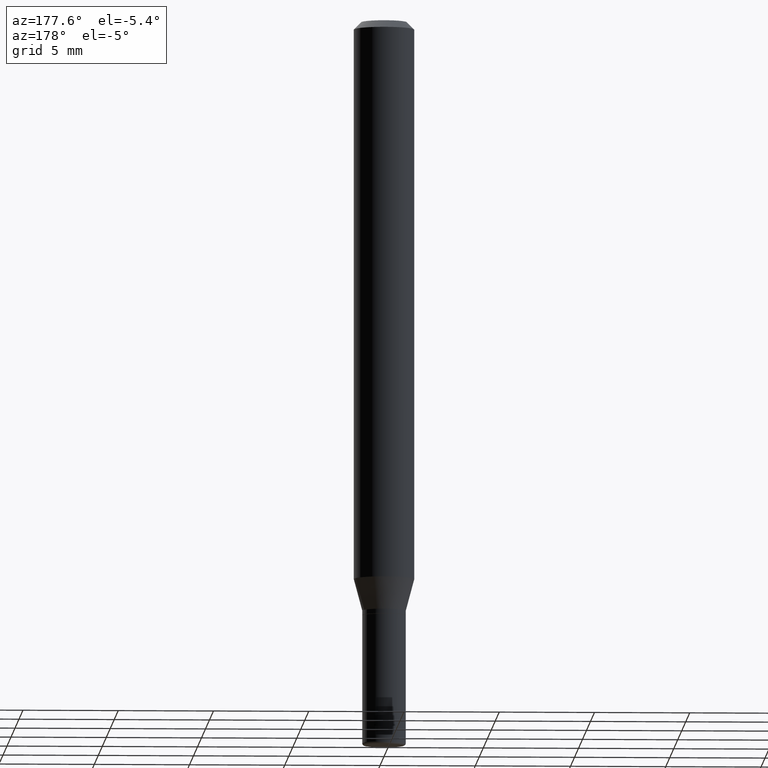
[diagram: clean part render]
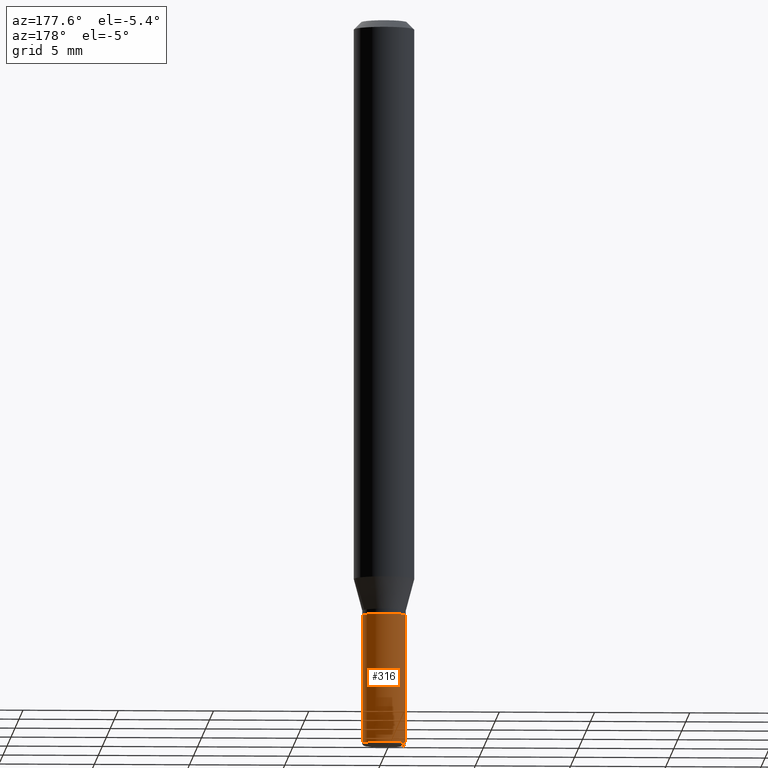
[diagram: same view with one face highlighted and labeled with its STEP entity id]
A machine part, auxiliary view. The second image highlights one B-rep face of the part: STEP entity #316.
In plain terms, the highlighted cylindrical surface (edge-blend (fillet) strip) has radius 1.143 mm, axis along (-0, 0, 1).
Its self-contained STEP definition (entity closure, byte-faithful):
#9 = DIRECTION ( 'NONE',  ( -2.445468806185136597E-29, 3.491481338843145583E-15, 1.000000000000000000 ) ) ;
#14 = CARTESIAN_POINT ( 'NONE',  ( 3.655975865246779683E-29, -5.219764601570503930E-15, -1.495000000000000329 ) ) ;
#26 = LINE ( 'NONE', #470, #53 ) ;
#30 = ORIENTED_EDGE ( 'NONE', *, *, #360, .T. ) ;
#43 = DIRECTION ( 'NONE',  ( 1.000000000000000000, -6.982962677686269077E-15, 0.000000000000000000 ) ) ;
#53 = VECTOR ( 'NONE', #344, 39.37007874015748143 ) ;
#73 = EDGE_CURVE ( 'NONE', #172, #255, #199, .T. ) ;
#79 = DIRECTION ( 'NONE',  ( -2.445468806185136597E-29, 3.491481338843145583E-15, 1.000000000000000000 ) ) ;
#85 = CARTESIAN_POINT ( 'NONE',  ( 3.007926631607718216E-29, -4.294522046777069173E-15, -1.230000000000000204 ) ) ;
#91 = VECTOR ( 'NONE', #107, 39.37007874015748143 ) ;
#107 = DIRECTION ( 'NONE',  ( -2.445468806185136877E-29, 3.491481338843145188E-15, 1.000000000000000000 ) ) ;
#137 = CARTESIAN_POINT ( 'NONE',  ( -0.04499999999999994976, 3.197442310920447267E-16, -2.213520790614704757E-30 ) ) ;
#143 = CARTESIAN_POINT ( 'NONE',  ( -0.04499999999999990119, -4.437399093081741973E-15, -1.495000000000000329 ) ) ;
#148 = ORIENTED_EDGE ( 'NONE', *, *, #456, .F. ) ;
#157 = CARTESIAN_POINT ( 'NONE',  ( 0.04499999999999990119, -5.533997922066385616E-15, -1.495000000000000329 ) ) ;
#169 = DIRECTION ( 'NONE',  ( 1.000000000000000000, -6.982962677686261977E-15, 0.000000000000000000 ) ) ;
#172 = VERTEX_POINT ( 'NONE', #442 ) ;
#199 = CIRCLE ( 'NONE', #234, 0.04499999999999999833 ) ;
#206 = VERTEX_POINT ( 'NONE', #157 ) ;
#234 = AXIS2_PLACEMENT_3D ( 'NONE', #85, #79, #43 ) ;
#255 = VERTEX_POINT ( 'NONE', #291 ) ;
#259 = CYLINDRICAL_SURFACE ( 'NONE', #506, 0.04499999999999994976 ) ;
#287 = EDGE_LOOP ( 'NONE', ( #377, #30, #331, #148 ) ) ;
#291 = CARTESIAN_POINT ( 'NONE',  ( -0.04499999999999999833, -4.437399093081741973E-15, -1.230000000000000204 ) ) ;
#316 = ADVANCED_FACE ( 'NONE', ( #384 ), #259, .T. ) ;
#327 = CARTESIAN_POINT ( 'NONE',  ( 0.000000000000000000, 0.000000000000000000, 0.000000000000000000 ) ) ;
#331 = ORIENTED_EDGE ( 'NONE', *, *, #73, .F. ) ;
#336 = LINE ( 'NONE', #137, #91 ) ;
#337 = EDGE_CURVE ( 'NONE', #206, #379, #429, .T. ) ;
#344 = DIRECTION ( 'NONE',  ( -2.445468806185136877E-29, 3.491481338843145188E-15, 1.000000000000000000 ) ) ;
#360 = EDGE_CURVE ( 'NONE', #379, #255, #336, .T. ) ;
#377 = ORIENTED_EDGE ( 'NONE', *, *, #337, .T. ) ;
#379 = VERTEX_POINT ( 'NONE', #143 ) ;
#384 = FACE_OUTER_BOUND ( 'NONE', #287, .T. ) ;
#416 = DIRECTION ( 'NONE',  ( 1.000000000000000000, -6.982962677686266711E-15, 4.876176775795934672E-29 ) ) ;
#429 = CIRCLE ( 'NONE', #499, 0.04499999999999990119 ) ;
#442 = CARTESIAN_POINT ( 'NONE',  ( 0.04499999999999999833, -4.608755367272951648E-15, -1.230000000000000204 ) ) ;
#456 = EDGE_CURVE ( 'NONE', #206, #172, #26, .T. ) ;
#470 = CARTESIAN_POINT ( 'NONE',  ( 0.04499999999999994976, -3.142333204958816371E-16, 2.194279549108168164E-30 ) ) ;
#496 = DIRECTION ( 'NONE',  ( -2.445468806185136597E-29, 3.491481338843145583E-15, 1.000000000000000000 ) ) ;
#499 = AXIS2_PLACEMENT_3D ( 'NONE', #14, #9, #169 ) ;
#506 = AXIS2_PLACEMENT_3D ( 'NONE', #327, #496, #416 ) ;